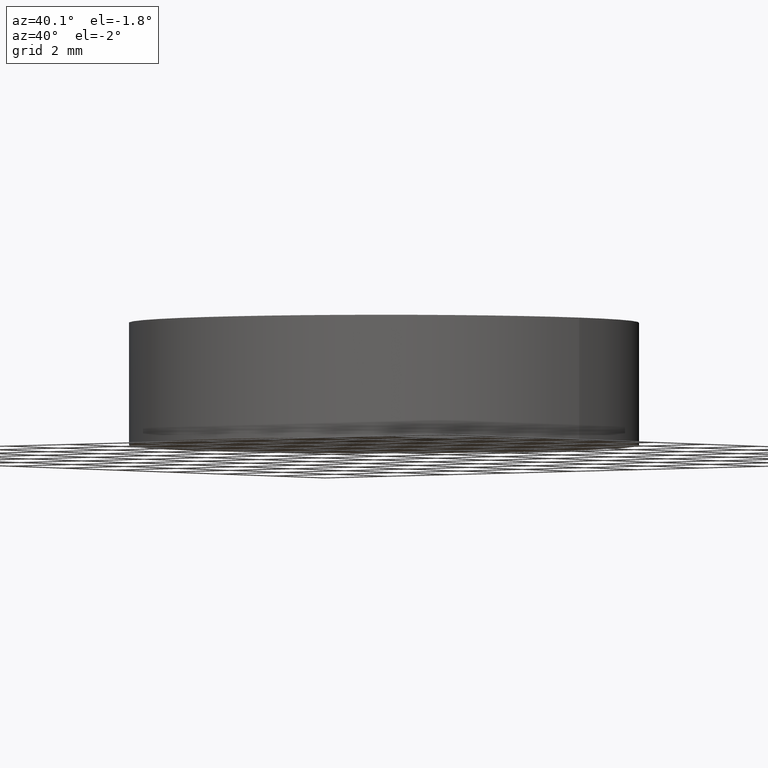
[diagram: clean part render]
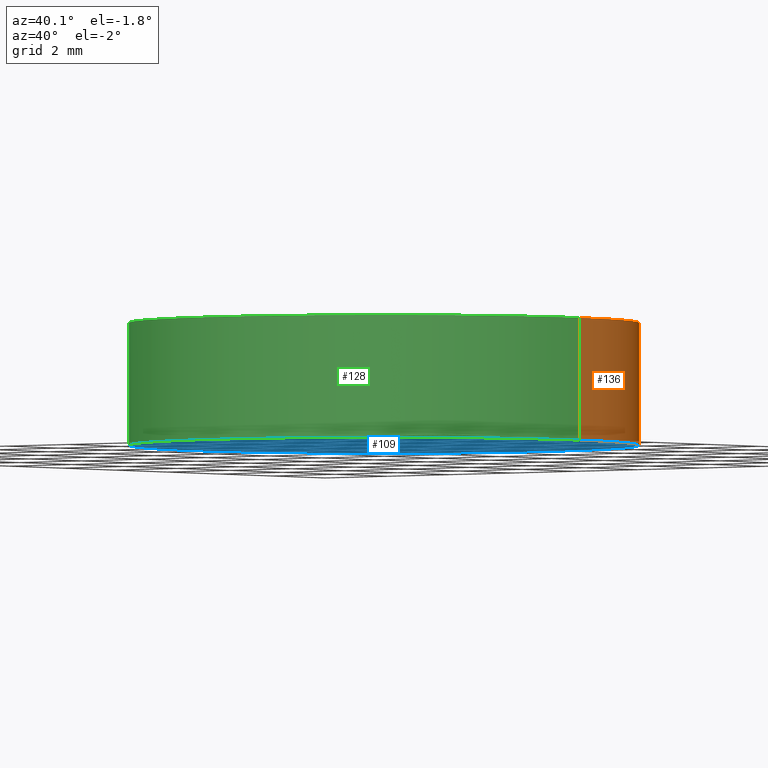
[diagram: same view with three faces highlighted in distinct colors, each labeled with its STEP entity id]
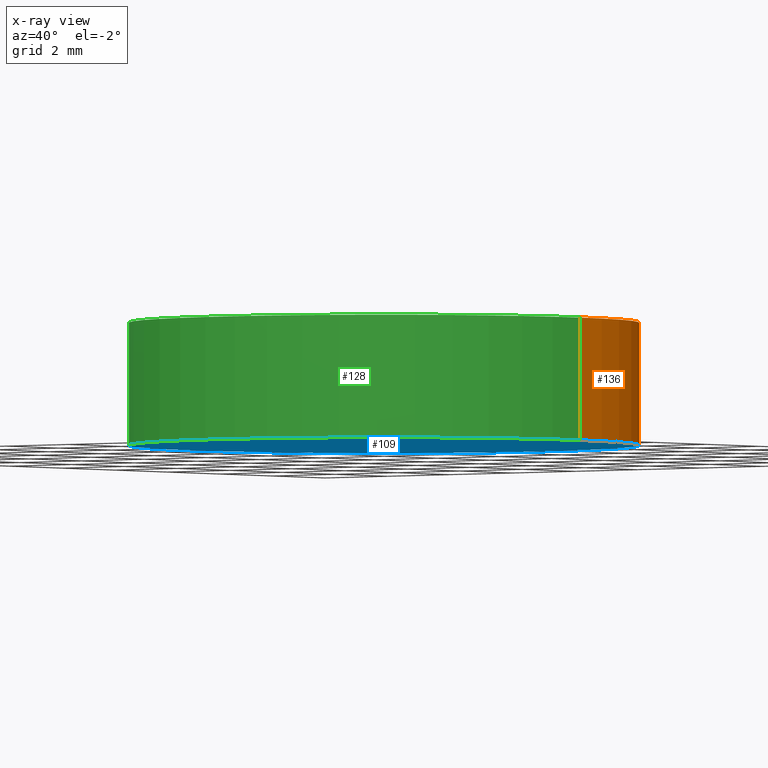
[diagram: x-ray of the same camera — body ghosted, the three highlighted faces saturated]
A machine part, auxiliary view with three faces highlighted in distinct colors.
The next image is the same camera in x-ray (body ghosted, the three faces saturated) — at least one of them is partly hidden behind the body in this view.
Their STEP definitions:

[orange] entity #136 — the highlighted cylindrical surface (partial cylindrical patch) has radius 6.25 mm, axis along (-0, -0, -1).
#4 = VERTEX_POINT ( 'NONE', #105 ) ;
#10 = AXIS2_PLACEMENT_3D ( 'NONE', #18, #26, #106 ) ;
#11 = FACE_OUTER_BOUND ( 'NONE', #59, .T. ) ;
#14 = CARTESIAN_POINT ( 'NONE',  ( 6.250000000000000000, 7.654042494670957600E-016, 3.000000000000000000 ) ) ;
#18 = CARTESIAN_POINT ( 'NONE',  ( 0.0000000000000000000, 0.0000000000000000000, 3.000000000000000000 ) ) ;
#19 = CARTESIAN_POINT ( 'NONE',  ( 6.250000000000000000, 7.654042494670957600E-016, 3.000000000000000000 ) ) ;
#20 = DIRECTION ( 'NONE',  ( -0.0000000000000000000, -0.0000000000000000000, -1.000000000000000000 ) ) ;
#25 = ORIENTED_EDGE ( 'NONE', *, *, #29, .F. ) ;
#26 = DIRECTION ( 'NONE',  ( -0.0000000000000000000, -0.0000000000000000000, -1.000000000000000000 ) ) ;
#29 = EDGE_CURVE ( 'NONE', #91, #36, #120, .T. ) ;
#31 = DIRECTION ( 'NONE',  ( 1.000000000000000000, 0.0000000000000000000, 0.0000000000000000000 ) ) ;
#35 = VECTOR ( 'NONE', #20, 1000.000000000000000 ) ;
#36 = VERTEX_POINT ( 'NONE', #51 ) ;
#45 = CARTESIAN_POINT ( 'NONE',  ( 0.0000000000000000000, 0.0000000000000000000, 3.000000000000000000 ) ) ;
#48 = EDGE_CURVE ( 'NONE', #36, #62, #61, .T. ) ;
#51 = CARTESIAN_POINT ( 'NONE',  ( -6.250000000000000000, 0.0000000000000000000, 3.000000000000000000 ) ) ;
#54 = AXIS2_PLACEMENT_3D ( 'NONE', #45, #82, #31 ) ;
#59 = EDGE_LOOP ( 'NONE', ( #25, #137, #79, #115 ) ) ;
#61 = LINE ( 'NONE', #77, #35 ) ;
#62 = VERTEX_POINT ( 'NONE', #130 ) ;
#63 = DIRECTION ( 'NONE',  ( -0.0000000000000000000, -0.0000000000000000000, -1.000000000000000000 ) ) ;
#64 = DIRECTION ( 'NONE',  ( 0.0000000000000000000, 0.0000000000000000000, 1.000000000000000000 ) ) ;
#69 = EDGE_CURVE ( 'NONE', #4, #62, #83, .T. ) ;
#73 = VECTOR ( 'NONE', #63, 1000.000000000000000 ) ;
#77 = CARTESIAN_POINT ( 'NONE',  ( -6.250000000000000000, 0.0000000000000000000, 3.000000000000000000 ) ) ;
#79 = ORIENTED_EDGE ( 'NONE', *, *, #69, .T. ) ;
#80 = DIRECTION ( 'NONE',  ( 1.000000000000000000, 0.0000000000000000000, 0.0000000000000000000 ) ) ;
#82 = DIRECTION ( 'NONE',  ( 0.0000000000000000000, 0.0000000000000000000, 1.000000000000000000 ) ) ;
#83 = CIRCLE ( 'NONE', #84, 6.250000000000000000 ) ;
#84 = AXIS2_PLACEMENT_3D ( 'NONE', #96, #64, #80 ) ;
#91 = VERTEX_POINT ( 'NONE', #14 ) ;
#96 = CARTESIAN_POINT ( 'NONE',  ( 0.0000000000000000000, 0.0000000000000000000, 0.0000000000000000000 ) ) ;
#105 = CARTESIAN_POINT ( 'NONE',  ( 6.250000000000000000, 7.654042494670957600E-016, 0.0000000000000000000 ) ) ;
#106 = DIRECTION ( 'NONE',  ( -1.000000000000000000, 0.0000000000000000000, 0.0000000000000000000 ) ) ;
#115 = ORIENTED_EDGE ( 'NONE', *, *, #48, .F. ) ;
#120 = CIRCLE ( 'NONE', #54, 6.250000000000000000 ) ;
#121 = CYLINDRICAL_SURFACE ( 'NONE', #10, 6.250000000000000000 ) ;
#122 = LINE ( 'NONE', #19, #73 ) ;
#127 = EDGE_CURVE ( 'NONE', #91, #4, #122, .T. ) ;
#130 = CARTESIAN_POINT ( 'NONE',  ( -6.250000000000000000, 0.0000000000000000000, 0.0000000000000000000 ) ) ;
#136 = ADVANCED_FACE ( 'NONE', ( #11 ), #121, .T. ) ;
#137 = ORIENTED_EDGE ( 'NONE', *, *, #127, .T. ) ;

[blue] entity #109 — the highlighted planar face has unit normal (0, 0, 1).
#4 = VERTEX_POINT ( 'NONE', #105 ) ;
#8 = CARTESIAN_POINT ( 'NONE',  ( 0.0000000000000000000, 0.0000000000000000000, 0.0000000000000000000 ) ) ;
#12 = AXIS2_PLACEMENT_3D ( 'NONE', #8, #66, #135 ) ;
#22 = ORIENTED_EDGE ( 'NONE', *, *, #38, .F. ) ;
#28 = PLANE ( 'NONE',  #102 ) ;
#38 = EDGE_CURVE ( 'NONE', #62, #4, #86, .T. ) ;
#53 = DIRECTION ( 'NONE',  ( 1.000000000000000000, 0.0000000000000000000, -0.0000000000000000000 ) ) ;
#55 = CARTESIAN_POINT ( 'NONE',  ( 0.0000000000000000000, 0.0000000000000000000, 0.0000000000000000000 ) ) ;
#62 = VERTEX_POINT ( 'NONE', #130 ) ;
#64 = DIRECTION ( 'NONE',  ( 0.0000000000000000000, 0.0000000000000000000, 1.000000000000000000 ) ) ;
#66 = DIRECTION ( 'NONE',  ( 0.0000000000000000000, 0.0000000000000000000, 1.000000000000000000 ) ) ;
#69 = EDGE_CURVE ( 'NONE', #4, #62, #83, .T. ) ;
#80 = DIRECTION ( 'NONE',  ( 1.000000000000000000, 0.0000000000000000000, 0.0000000000000000000 ) ) ;
#83 = CIRCLE ( 'NONE', #84, 6.250000000000000000 ) ;
#84 = AXIS2_PLACEMENT_3D ( 'NONE', #96, #64, #80 ) ;
#86 = CIRCLE ( 'NONE', #12, 6.250000000000000000 ) ;
#96 = CARTESIAN_POINT ( 'NONE',  ( 0.0000000000000000000, 0.0000000000000000000, 0.0000000000000000000 ) ) ;
#98 = ORIENTED_EDGE ( 'NONE', *, *, #69, .F. ) ;
#102 = AXIS2_PLACEMENT_3D ( 'NONE', #55, #116, #53 ) ;
#105 = CARTESIAN_POINT ( 'NONE',  ( 6.250000000000000000, 7.654042494670957600E-016, 0.0000000000000000000 ) ) ;
#109 = ADVANCED_FACE ( 'NONE', ( #131 ), #28, .F. ) ;
#110 = EDGE_LOOP ( 'NONE', ( #22, #98 ) ) ;
#116 = DIRECTION ( 'NONE',  ( 0.0000000000000000000, 0.0000000000000000000, 1.000000000000000000 ) ) ;
#130 = CARTESIAN_POINT ( 'NONE',  ( -6.250000000000000000, 0.0000000000000000000, 0.0000000000000000000 ) ) ;
#131 = FACE_OUTER_BOUND ( 'NONE', #110, .T. ) ;
#135 = DIRECTION ( 'NONE',  ( 1.000000000000000000, 0.0000000000000000000, 0.0000000000000000000 ) ) ;

[green] entity #128 — the highlighted cylindrical surface (partial cylindrical patch) has radius 6.25 mm, axis along (-0, -0, -1).
#4 = VERTEX_POINT ( 'NONE', #105 ) ;
#8 = CARTESIAN_POINT ( 'NONE',  ( 0.0000000000000000000, 0.0000000000000000000, 0.0000000000000000000 ) ) ;
#9 = ORIENTED_EDGE ( 'NONE', *, *, #127, .F. ) ;
#12 = AXIS2_PLACEMENT_3D ( 'NONE', #8, #66, #135 ) ;
#14 = CARTESIAN_POINT ( 'NONE',  ( 6.250000000000000000, 7.654042494670957600E-016, 3.000000000000000000 ) ) ;
#19 = CARTESIAN_POINT ( 'NONE',  ( 6.250000000000000000, 7.654042494670957600E-016, 3.000000000000000000 ) ) ;
#20 = DIRECTION ( 'NONE',  ( -0.0000000000000000000, -0.0000000000000000000, -1.000000000000000000 ) ) ;
#21 = AXIS2_PLACEMENT_3D ( 'NONE', #107, #95, #43 ) ;
#35 = VECTOR ( 'NONE', #20, 1000.000000000000000 ) ;
#36 = VERTEX_POINT ( 'NONE', #51 ) ;
#38 = EDGE_CURVE ( 'NONE', #62, #4, #86, .T. ) ;
#39 = CIRCLE ( 'NONE', #74, 6.250000000000000000 ) ;
#43 = DIRECTION ( 'NONE',  ( -1.000000000000000000, 0.0000000000000000000, 0.0000000000000000000 ) ) ;
#48 = EDGE_CURVE ( 'NONE', #36, #62, #61, .T. ) ;
#51 = CARTESIAN_POINT ( 'NONE',  ( -6.250000000000000000, 0.0000000000000000000, 3.000000000000000000 ) ) ;
#52 = DIRECTION ( 'NONE',  ( 1.000000000000000000, 0.0000000000000000000, 0.0000000000000000000 ) ) ;
#56 = CYLINDRICAL_SURFACE ( 'NONE', #21, 6.250000000000000000 ) ;
#57 = ORIENTED_EDGE ( 'NONE', *, *, #38, .T. ) ;
#61 = LINE ( 'NONE', #77, #35 ) ;
#62 = VERTEX_POINT ( 'NONE', #130 ) ;
#63 = DIRECTION ( 'NONE',  ( -0.0000000000000000000, -0.0000000000000000000, -1.000000000000000000 ) ) ;
#66 = DIRECTION ( 'NONE',  ( 0.0000000000000000000, 0.0000000000000000000, 1.000000000000000000 ) ) ;
#68 = ORIENTED_EDGE ( 'NONE', *, *, #48, .T. ) ;
#73 = VECTOR ( 'NONE', #63, 1000.000000000000000 ) ;
#74 = AXIS2_PLACEMENT_3D ( 'NONE', #114, #93, #52 ) ;
#77 = CARTESIAN_POINT ( 'NONE',  ( -6.250000000000000000, 0.0000000000000000000, 3.000000000000000000 ) ) ;
#86 = CIRCLE ( 'NONE', #12, 6.250000000000000000 ) ;
#87 = ORIENTED_EDGE ( 'NONE', *, *, #119, .F. ) ;
#91 = VERTEX_POINT ( 'NONE', #14 ) ;
#93 = DIRECTION ( 'NONE',  ( 0.0000000000000000000, 0.0000000000000000000, 1.000000000000000000 ) ) ;
#94 = FACE_OUTER_BOUND ( 'NONE', #140, .T. ) ;
#95 = DIRECTION ( 'NONE',  ( -0.0000000000000000000, -0.0000000000000000000, -1.000000000000000000 ) ) ;
#105 = CARTESIAN_POINT ( 'NONE',  ( 6.250000000000000000, 7.654042494670957600E-016, 0.0000000000000000000 ) ) ;
#107 = CARTESIAN_POINT ( 'NONE',  ( 0.0000000000000000000, 0.0000000000000000000, 3.000000000000000000 ) ) ;
#114 = CARTESIAN_POINT ( 'NONE',  ( 0.0000000000000000000, 0.0000000000000000000, 3.000000000000000000 ) ) ;
#119 = EDGE_CURVE ( 'NONE', #36, #91, #39, .T. ) ;
#122 = LINE ( 'NONE', #19, #73 ) ;
#127 = EDGE_CURVE ( 'NONE', #91, #4, #122, .T. ) ;
#128 = ADVANCED_FACE ( 'NONE', ( #94 ), #56, .T. ) ;
#130 = CARTESIAN_POINT ( 'NONE',  ( -6.250000000000000000, 0.0000000000000000000, 0.0000000000000000000 ) ) ;
#135 = DIRECTION ( 'NONE',  ( 1.000000000000000000, 0.0000000000000000000, 0.0000000000000000000 ) ) ;
#140 = EDGE_LOOP ( 'NONE', ( #9, #87, #68, #57 ) ) ;